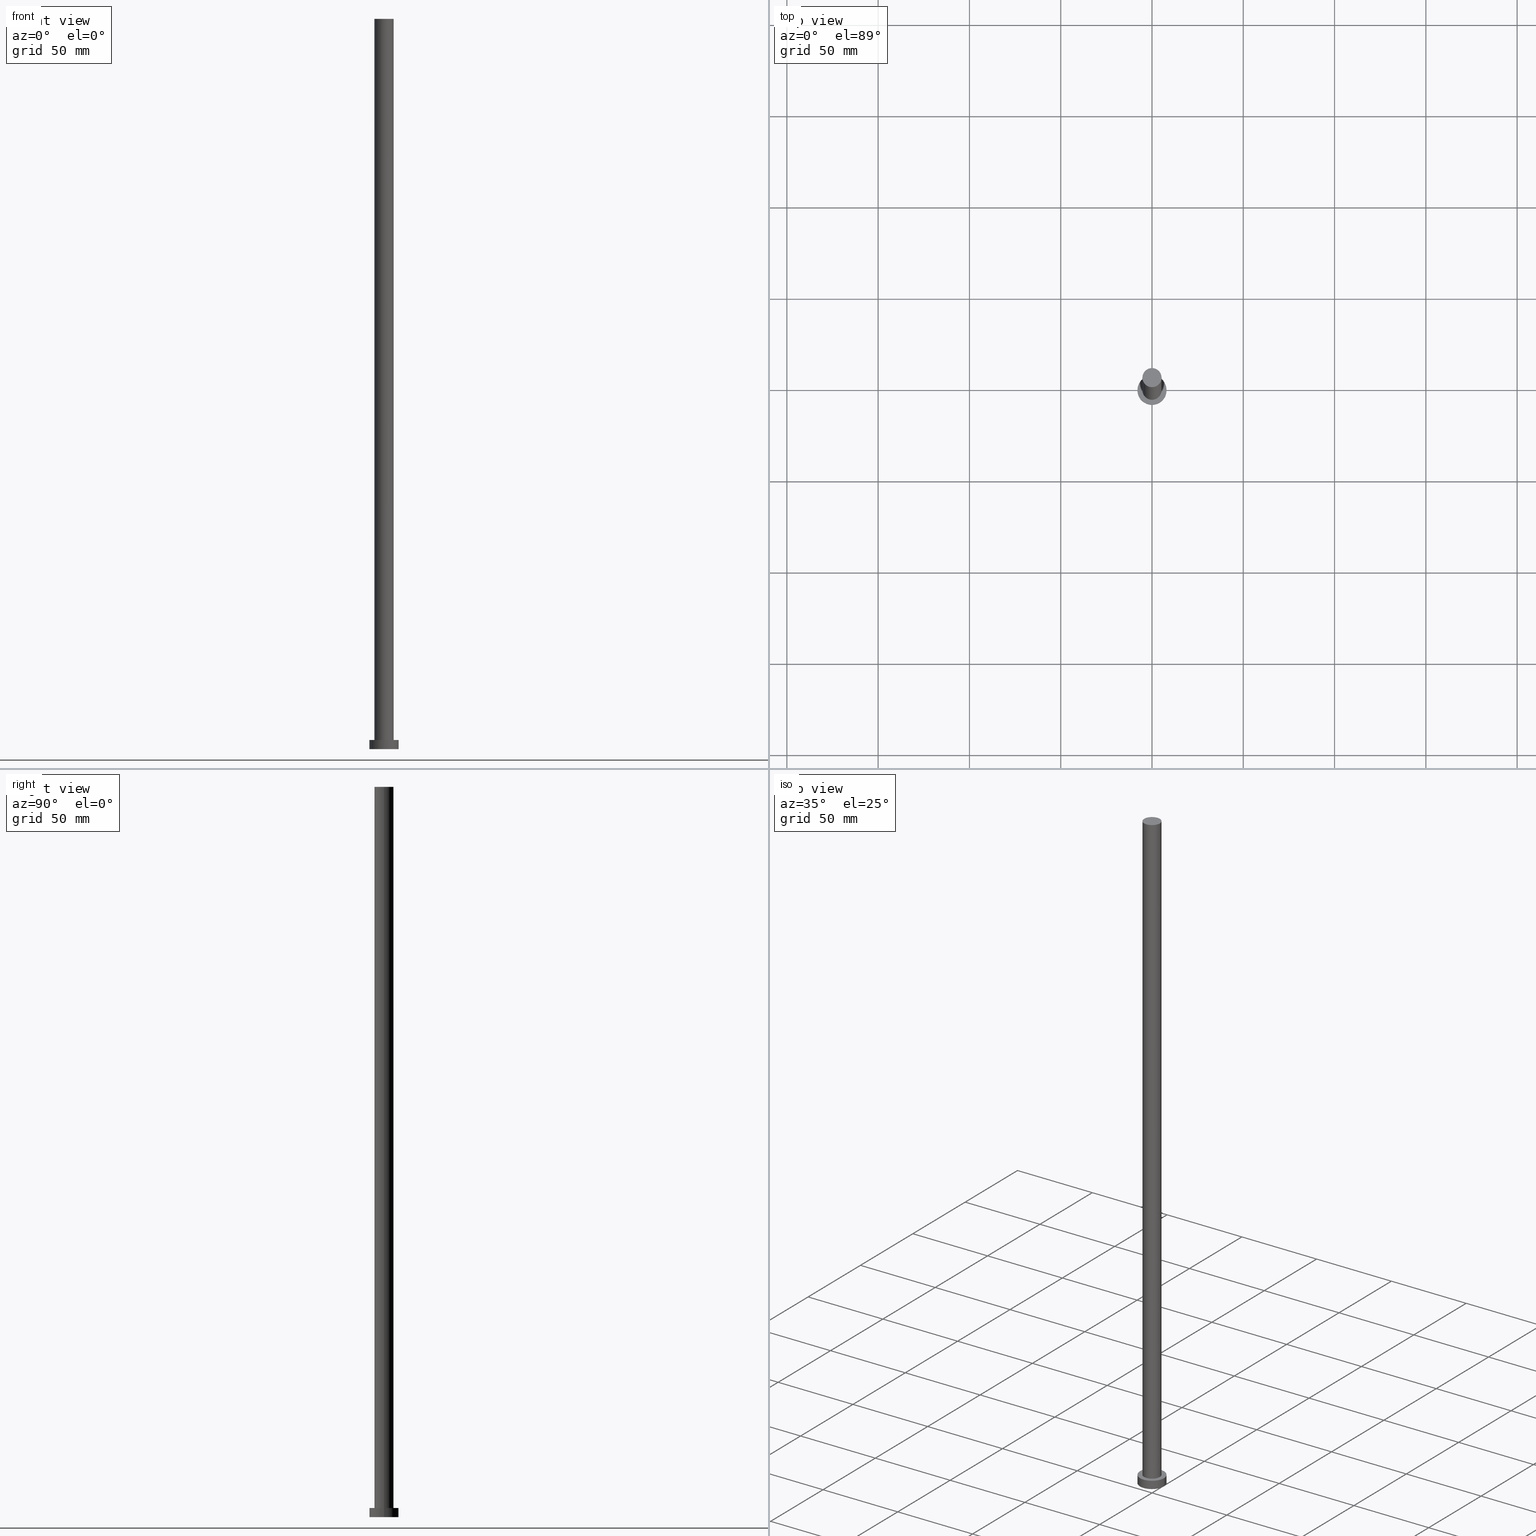
[diagram: canonical four-view strip — front | top / right | iso, engineering-drawing reading convention]
A machine part, canonical four-view strip (front | top / right | iso — engineering-drawing reading convention). The complete STEP part file that produces these views, byte-faithful:
ISO-10303-21;
HEADER;
FILE_DESCRIPTION (( 'STEP AP203' ),
    '1' );
FILE_NAME ('721b.STEP',
    '2023-02-12T11:16:03',
    ( '' ),
    ( '' ),
    'SwSTEP 2.0',
    'SolidWorks 2019',
    '' );
FILE_SCHEMA (( 'CONFIG_CONTROL_DESIGN' ));
ENDSEC;

DATA;
#1 = CARTESIAN_POINT ( 'NONE',  ( 0.000000000000000000, 0.000000000000000000, 400.0000000000000000 ) ) ;
#2 = CARTESIAN_POINT ( 'NONE',  ( -8.000000000000000000, 0.000000000000000000, 5.000000000000000000 ) ) ;
#3 = DIRECTION ( 'NONE',  ( 1.000000000000000000, 0.000000000000000000, 0.000000000000000000 ) ) ;
#4 = PRODUCT ( '721b', '721b', '', ( #84 ) ) ;
#5 = CC_DESIGN_DATE_AND_TIME_ASSIGNMENT ( #159, #115, ( #255 ) ) ;
#6 = ORIENTED_EDGE ( 'NONE', *, *, #206, .F. ) ;
#7 = DIRECTION ( 'NONE',  ( -0.000000000000000000, -0.000000000000000000, -1.000000000000000000 ) ) ;
#8 = VECTOR ( 'NONE', #73, 1000.000000000000000 ) ;
#9 = VERTEX_POINT ( 'NONE', #219 ) ;
#10 = PERSON_AND_ORGANIZATION ( #14, #74 ) ;
#11 = APPROVAL_PERSON_ORGANIZATION ( #170, #143, #69 ) ;
#12 = EDGE_CURVE ( 'NONE', #128, #154, #139, .T. ) ;
#13 = APPROVAL_DATE_TIME ( #192, #143 ) ;
#14 = PERSON ( 'NEUR�EN�', 'NEUR�EN�', 'NEUR�EN�', ('NEUR�EN�'), ('NEUR�EN�'), ('NEUR�EN�') ) ;
#15 = AXIS2_PLACEMENT_3D ( 'NONE', #116, #136, #197 ) ;
#16 = CARTESIAN_POINT ( 'NONE',  ( 0.000000000000000000, 0.000000000000000000, 400.0000000000000000 ) ) ;
#17 = EDGE_CURVE ( 'NONE', #9, #169, #254, .T. ) ;
#18 = DIRECTION ( 'NONE',  ( -0.000000000000000000, -0.000000000000000000, -1.000000000000000000 ) ) ;
#19 = APPLICATION_PROTOCOL_DEFINITION ( 'international standard', 'config_control_design', 1994, #60 ) ;
#20 = DIRECTION ( 'NONE',  ( -1.000000000000000000, 0.000000000000000000, 0.000000000000000000 ) ) ;
#21 = AXIS2_PLACEMENT_3D ( 'NONE', #187, #106, #245 ) ;
#22 = DIRECTION ( 'NONE',  ( 0.000000000000000000, 0.000000000000000000, 1.000000000000000000 ) ) ;
#23 = DATE_AND_TIME ( #242, #207 ) ;
#24 = AXIS2_PLACEMENT_3D ( 'NONE', #16, #96, #217 ) ;
#25 = DIRECTION ( 'NONE',  ( 1.000000000000000000, 0.000000000000000000, 0.000000000000000000 ) ) ;
#26 = APPROVAL_STATUS ( 'not_yet_approved' ) ;
#27 = AXIS2_PLACEMENT_3D ( 'NONE', #167, #227, #121 ) ;
#28 = ORIENTED_EDGE ( 'NONE', *, *, #184, .T. ) ;
#29 = CC_DESIGN_PERSON_AND_ORGANIZATION_ASSIGNMENT ( #46, #202, ( #189 ) ) ;
#30 = CALENDAR_DATE ( 2023, 12, 2 ) ;
#31 = ORIENTED_EDGE ( 'NONE', *, *, #61, .T. ) ;
#32 =( NAMED_UNIT ( * ) SI_UNIT ( $, .STERADIAN. ) SOLID_ANGLE_UNIT ( ) );
#33 = ORIENTED_EDGE ( 'NONE', *, *, #206, .T. ) ;
#34 = EDGE_CURVE ( 'NONE', #169, #107, #135, .T. ) ;
#35 = VERTEX_POINT ( 'NONE', #252 ) ;
#36 = DATE_AND_TIME ( #113, #178 ) ;
#37 = ORIENTED_EDGE ( 'NONE', *, *, #211, .T. ) ;
#38 = CARTESIAN_POINT ( 'NONE',  ( 5.250000000000000888, 6.429395695523604153E-16, 400.0000000000000000 ) ) ;
#39 = CARTESIAN_POINT ( 'NONE',  ( 5.250000000000000888, 6.429395695523604153E-16, 400.0000000000000000 ) ) ;
#40 = PLANE ( 'NONE',  #103 ) ;
#41 = APPROVAL_ROLE ( '' ) ;
#42 = CARTESIAN_POINT ( 'NONE',  ( 5.250000000000000888, 6.429395695523604153E-16, 5.000000000000000000 ) ) ;
#43 = FACE_OUTER_BOUND ( 'NONE', #161, .T. ) ;
#44 = APPROVAL_STATUS ( 'not_yet_approved' ) ;
#45 = DESIGN_CONTEXT ( 'detailed design', #214, 'design' ) ;
#46 = PERSON_AND_ORGANIZATION ( #14, #74 ) ;
#47 = ORIENTED_EDGE ( 'NONE', *, *, #166, .F. ) ;
#48 = ORIENTED_EDGE ( 'NONE', *, *, #119, .T. ) ;
#49 = LINE ( 'NONE', #64, #68 ) ;
#50 =( LENGTH_UNIT ( ) NAMED_UNIT ( * ) SI_UNIT ( .MILLI., .METRE. ) );
#51 = PERSON_AND_ORGANIZATION_ROLE ( 'creator' ) ;
#52 = CIRCLE ( 'NONE', #229, 8.000000000000000000 ) ;
#53 = CC_DESIGN_APPROVAL ( #72, ( #189 ) ) ;
#54 = ADVANCED_FACE ( 'NONE', ( #199 ), #117, .T. ) ;
#55 = CARTESIAN_POINT ( 'NONE',  ( -5.250000000000000888, 0.000000000000000000, 5.000000000000000000 ) ) ;
#56 = CARTESIAN_POINT ( 'NONE',  ( -5.250000000000000888, 0.000000000000000000, 400.0000000000000000 ) ) ;
#57 = DATE_AND_TIME ( #30, #114 ) ;
#58 = LOCAL_TIME ( 12, 16, 3.000000000000000000, #155 ) ;
#59 = CARTESIAN_POINT ( 'NONE',  ( 0.000000000000000000, 0.000000000000000000, 400.0000000000000000 ) ) ;
#60 = APPLICATION_CONTEXT ( 'configuration controlled 3d designs of mechanical parts and assemblies' ) ;
#61 = EDGE_CURVE ( 'NONE', #107, #35, #52, .T. ) ;
#62 = CARTESIAN_POINT ( 'NONE',  ( 0.000000000000000000, 0.000000000000000000, 5.000000000000000000 ) ) ;
#63 = CARTESIAN_POINT ( 'NONE',  ( 0.000000000000000000, 0.000000000000000000, 5.000000000000000000 ) ) ;
#64 = CARTESIAN_POINT ( 'NONE',  ( 8.000000000000000000, 9.797174393178825657E-16, 5.000000000000000000 ) ) ;
#65 = CC_DESIGN_DATE_AND_TIME_ASSIGNMENT ( #23, #83, ( #189 ) ) ;
#66 = EDGE_LOOP ( 'NONE', ( #210, #47 ) ) ;
#67 = EDGE_LOOP ( 'NONE', ( #94, #86, #171, #253 ) ) ;
#68 = VECTOR ( 'NONE', #191, 1000.000000000000000 ) ;
#69 = APPROVAL_ROLE ( '' ) ;
#70 = AXIS2_PLACEMENT_3D ( 'NONE', #63, #185, #224 ) ;
#71 = ORIENTED_EDGE ( 'NONE', *, *, #34, .T. ) ;
#72 = APPROVAL ( #44, 'NEUR�EN�' ) ;
#73 = DIRECTION ( 'NONE',  ( -0.000000000000000000, -0.000000000000000000, -1.000000000000000000 ) ) ;
#74 = ORGANIZATION ( 'NEUR�EN�', 'NEUR�EN�', '' ) ;
#75 = EDGE_CURVE ( 'NONE', #112, #246, #195, .T. ) ;
#76 = AXIS2_PLACEMENT_3D ( 'NONE', #1, #201, #3 ) ;
#77 = ORIENTED_EDGE ( 'NONE', *, *, #75, .T. ) ;
#78 = AXIS2_PLACEMENT_3D ( 'NONE', #148, #22, #180 ) ;
#79 = DIRECTION ( 'NONE',  ( 0.000000000000000000, 0.000000000000000000, 1.000000000000000000 ) ) ;
#80 = FACE_OUTER_BOUND ( 'NONE', #133, .T. ) ;
#81 = APPLICATION_PROTOCOL_DEFINITION ( 'international standard', 'config_control_design', 1994, #214 ) ;
#82 = CYLINDRICAL_SURFACE ( 'NONE', #249, 8.000000000000000000 ) ;
#83 = DATE_TIME_ROLE ( 'creation_date' ) ;
#84 = MECHANICAL_CONTEXT ( 'NONE', #60, 'mechanical' ) ;
#85 = ORIENTED_EDGE ( 'NONE', *, *, #61, .F. ) ;
#86 = ORIENTED_EDGE ( 'NONE', *, *, #12, .T. ) ;
#87 = PERSON_AND_ORGANIZATION ( #14, #74 ) ;
#88 = COORDINATED_UNIVERSAL_TIME_OFFSET ( 1, 0, .AHEAD. ) ;
#89 = ORIENTED_EDGE ( 'NONE', *, *, #184, .F. ) ;
#90 = ADVANCED_FACE ( 'NONE', ( #158 ), #232, .T. ) ;
#91 = APPROVAL_PERSON_ORGANIZATION ( #124, #237, #183 ) ;
#92 = PERSON_AND_ORGANIZATION_ROLE ( 'classification_officer' ) ;
#93 = DIRECTION ( 'NONE',  ( 1.000000000000000000, 0.000000000000000000, 0.000000000000000000 ) ) ;
#94 = ORIENTED_EDGE ( 'NONE', *, *, #119, .F. ) ;
#95 = EDGE_CURVE ( 'NONE', #9, #35, #49, .T. ) ;
#96 = DIRECTION ( 'NONE',  ( -0.000000000000000000, -0.000000000000000000, -1.000000000000000000 ) ) ;
#97 = ADVANCED_FACE ( 'NONE', ( #160 ), #163, .T. ) ;
#98 = PRODUCT_DEFINITION_FORMATION_WITH_SPECIFIED_SOURCE ( 'LIBOVOLN�', '', #4, .NOT_KNOWN. ) ;
#99 = DIRECTION ( 'NONE',  ( 1.000000000000000000, 0.000000000000000000, -0.000000000000000000 ) ) ;
#100 = PERSON_AND_ORGANIZATION ( #14, #74 ) ;
#101 = CARTESIAN_POINT ( 'NONE',  ( 0.000000000000000000, 0.000000000000000000, 5.000000000000000000 ) ) ;
#102 = DIRECTION ( 'NONE',  ( -1.000000000000000000, 0.000000000000000000, 0.000000000000000000 ) ) ;
#103 = AXIS2_PLACEMENT_3D ( 'NONE', #168, #238, #244 ) ;
#104 = CC_DESIGN_APPROVAL ( #143, ( #255 ) ) ;
#105 = PLANE ( 'NONE',  #225 ) ;
#106 = DIRECTION ( 'NONE',  ( 0.000000000000000000, 0.000000000000000000, 1.000000000000000000 ) ) ;
#107 = VERTEX_POINT ( 'NONE', #239 ) ;
#108 = APPROVAL_DATE_TIME ( #57, #72 ) ;
#109 = ORIENTED_EDGE ( 'NONE', *, *, #95, .F. ) ;
#110 = SECURITY_CLASSIFICATION_LEVEL ( 'unclassified' ) ;
#111 = EDGE_LOOP ( 'NONE', ( #109, #89, #71, #31 ) ) ;
#112 = VERTEX_POINT ( 'NONE', #56 ) ;
#113 = CALENDAR_DATE ( 2023, 12, 2 ) ;
#114 = LOCAL_TIME ( 12, 16, 3.000000000000000000, #209 ) ;
#115 = DATE_TIME_ROLE ( 'classification_date' ) ;
#116 = CARTESIAN_POINT ( 'NONE',  ( 0.000000000000000000, 0.000000000000000000, 5.000000000000000000 ) ) ;
#117 = CYLINDRICAL_SURFACE ( 'NONE', #24, 5.250000000000000888 ) ;
#118 = ORIENTED_EDGE ( 'NONE', *, *, #17, .F. ) ;
#119 = EDGE_CURVE ( 'NONE', #128, #112, #193, .T. ) ;
#120 = CARTESIAN_POINT ( 'NONE',  ( 0.000000000000000000, 0.000000000000000000, 5.000000000000000000 ) ) ;
#121 = DIRECTION ( 'NONE',  ( 1.000000000000000000, 0.000000000000000000, 0.000000000000000000 ) ) ;
#122 = PERSON_AND_ORGANIZATION_ROLE ( 'design_owner' ) ;
#123 = PRODUCT_DEFINITION_SHAPE ( 'NONE', 'NONE',  #189 ) ;
#124 = PERSON_AND_ORGANIZATION ( #14, #74 ) ;
#125 = CLOSED_SHELL ( 'NONE', ( #97, #251, #90, #216, #141, #54, #231 ) ) ;
#126 = FACE_OUTER_BOUND ( 'NONE', #130, .T. ) ;
#127 = FACE_OUTER_BOUND ( 'NONE', #213, .T. ) ;
#128 = VERTEX_POINT ( 'NONE', #39 ) ;
#129 = CALENDAR_DATE ( 2023, 12, 2 ) ;
#130 = EDGE_LOOP ( 'NONE', ( #28, #152 ) ) ;
#131 = APPROVAL_STATUS ( 'not_yet_approved' ) ;
#132 = CIRCLE ( 'NONE', #182, 5.250000000000000888 ) ;
#133 = EDGE_LOOP ( 'NONE', ( #85, #6 ) ) ;
#134 = CC_DESIGN_SECURITY_CLASSIFICATION ( #255, ( #98 ) ) ;
#135 = LINE ( 'NONE', #175, #173 ) ;
#136 = DIRECTION ( 'NONE',  ( 0.000000000000000000, 0.000000000000000000, 1.000000000000000000 ) ) ;
#137 = CC_DESIGN_PERSON_AND_ORGANIZATION_ASSIGNMENT ( #10, #153, ( #98 ) ) ;
#138 = VECTOR ( 'NONE', #218, 1000.000000000000000 ) ;
#139 = LINE ( 'NONE', #38, #138 ) ;
#140 =( GEOMETRIC_REPRESENTATION_CONTEXT ( 3 ) GLOBAL_UNCERTAINTY_ASSIGNED_CONTEXT ( ( #221 ) ) GLOBAL_UNIT_ASSIGNED_CONTEXT ( ( #50, #220, #32 ) ) REPRESENTATION_CONTEXT ( 'NONE', 'WORKASPACE' ) );
#141 = ADVANCED_FACE ( 'NONE', ( #80 ), #105, .F. ) ;
#142 = CARTESIAN_POINT ( 'NONE',  ( 0.000000000000000000, 0.000000000000000000, 5.000000000000000000 ) ) ;
#143 = APPROVAL ( #131, 'NEUR�EN�' ) ;
#144 = FACE_BOUND ( 'NONE', #66, .T. ) ;
#145 = DIRECTION ( 'NONE',  ( -1.000000000000000000, 0.000000000000000000, 0.000000000000000000 ) ) ;
#146 = DIRECTION ( 'NONE',  ( 0.000000000000000000, 0.000000000000000000, 1.000000000000000000 ) ) ;
#147 = AXIS2_PLACEMENT_3D ( 'NONE', #120, #226, #243 ) ;
#148 = CARTESIAN_POINT ( 'NONE',  ( 0.000000000000000000, 0.000000000000000000, 0.000000000000000000 ) ) ;
#149 = PERSON_AND_ORGANIZATION ( #14, #74 ) ;
#150 = LOCAL_TIME ( 12, 16, 3.000000000000000000, #248 ) ;
#151 = EDGE_CURVE ( 'NONE', #246, #154, #181, .T. ) ;
#152 = ORIENTED_EDGE ( 'NONE', *, *, #17, .T. ) ;
#153 = PERSON_AND_ORGANIZATION_ROLE ( 'design_supplier' ) ;
#154 = VERTEX_POINT ( 'NONE', #42 ) ;
#155 = COORDINATED_UNIVERSAL_TIME_OFFSET ( 1, 0, .AHEAD. ) ;
#156 = CIRCLE ( 'NONE', #78, 8.000000000000000000 ) ;
#157 = ORIENTED_EDGE ( 'NONE', *, *, #12, .F. ) ;
#158 = FACE_OUTER_BOUND ( 'NONE', #111, .T. ) ;
#159 = DATE_AND_TIME ( #215, #150 ) ;
#160 = FACE_OUTER_BOUND ( 'NONE', #67, .T. ) ;
#161 = EDGE_LOOP ( 'NONE', ( #37, #48 ) ) ;
#162 = AXIS2_PLACEMENT_3D ( 'NONE', #235, #18, #102 ) ;
#163 = CYLINDRICAL_SURFACE ( 'NONE', #162, 5.250000000000000888 ) ;
#164 = CIRCLE ( 'NONE', #27, 5.250000000000000888 ) ;
#165 = CARTESIAN_POINT ( 'NONE',  ( 0.000000000000000000, 0.000000000000000000, 0.000000000000000000 ) ) ;
#166 = EDGE_CURVE ( 'NONE', #154, #246, #164, .T. ) ;
#167 = CARTESIAN_POINT ( 'NONE',  ( 0.000000000000000000, 0.000000000000000000, 5.000000000000000000 ) ) ;
#168 = CARTESIAN_POINT ( 'NONE',  ( 0.000000000000000000, 0.000000000000000000, 400.0000000000000000 ) ) ;
#169 = VERTEX_POINT ( 'NONE', #2 ) ;
#170 = PERSON_AND_ORGANIZATION ( #14, #74 ) ;
#171 = ORIENTED_EDGE ( 'NONE', *, *, #166, .T. ) ;
#172 = APPROVAL_DATE_TIME ( #36, #237 ) ;
#173 = VECTOR ( 'NONE', #177, 1000.000000000000000 ) ;
#174 = CARTESIAN_POINT ( 'NONE',  ( -5.250000000000000888, 0.000000000000000000, 400.0000000000000000 ) ) ;
#175 = CARTESIAN_POINT ( 'NONE',  ( -8.000000000000000000, 0.000000000000000000, 5.000000000000000000 ) ) ;
#176 = AXIS2_PLACEMENT_3D ( 'NONE', #101, #7, #20 ) ;
#177 = DIRECTION ( 'NONE',  ( -0.000000000000000000, -0.000000000000000000, -1.000000000000000000 ) ) ;
#178 = LOCAL_TIME ( 12, 16, 3.000000000000000000, #88 ) ;
#179 = CC_DESIGN_PERSON_AND_ORGANIZATION_ASSIGNMENT ( #87, #51, ( #98 ) ) ;
#180 = DIRECTION ( 'NONE',  ( 1.000000000000000000, 0.000000000000000000, 0.000000000000000000 ) ) ;
#181 = CIRCLE ( 'NONE', #147, 5.250000000000000888 ) ;
#182 = AXIS2_PLACEMENT_3D ( 'NONE', #59, #146, #203 ) ;
#183 = APPROVAL_ROLE ( '' ) ;
#184 = EDGE_CURVE ( 'NONE', #169, #9, #200, .T. ) ;
#185 = DIRECTION ( 'NONE',  ( 0.000000000000000000, 0.000000000000000000, 1.000000000000000000 ) ) ;
#186 = EDGE_LOOP ( 'NONE', ( #157, #190, #77, #188 ) ) ;
#187 = CARTESIAN_POINT ( 'NONE',  ( 0.000000000000000000, 0.000000000000000000, 0.000000000000000000 ) ) ;
#188 = ORIENTED_EDGE ( 'NONE', *, *, #151, .T. ) ;
#189 = PRODUCT_DEFINITION ( 'NEZN�M�', '', #98, #45 ) ;
#190 = ORIENTED_EDGE ( 'NONE', *, *, #211, .F. ) ;
#191 = DIRECTION ( 'NONE',  ( -0.000000000000000000, -0.000000000000000000, -1.000000000000000000 ) ) ;
#192 = DATE_AND_TIME ( #129, #58 ) ;
#193 = CIRCLE ( 'NONE', #76, 5.250000000000000888 ) ;
#194 = CC_DESIGN_APPROVAL ( #237, ( #98 ) ) ;
#195 = LINE ( 'NONE', #174, #8 ) ;
#196 = CC_DESIGN_PERSON_AND_ORGANIZATION_ASSIGNMENT ( #250, #92, ( #255 ) ) ;
#197 = DIRECTION ( 'NONE',  ( 1.000000000000000000, 0.000000000000000000, 0.000000000000000000 ) ) ;
#198 = CARTESIAN_POINT ( 'NONE',  ( 0.000000000000000000, 0.000000000000000000, 0.000000000000000000 ) ) ;
#199 = FACE_OUTER_BOUND ( 'NONE', #186, .T. ) ;
#200 = CIRCLE ( 'NONE', #233, 8.000000000000000000 ) ;
#201 = DIRECTION ( 'NONE',  ( 0.000000000000000000, 0.000000000000000000, 1.000000000000000000 ) ) ;
#202 = PERSON_AND_ORGANIZATION_ROLE ( 'creator' ) ;
#203 = DIRECTION ( 'NONE',  ( 1.000000000000000000, 0.000000000000000000, 0.000000000000000000 ) ) ;
#204 = COORDINATED_UNIVERSAL_TIME_OFFSET ( 1, 0, .AHEAD. ) ;
#205 = DIRECTION ( 'NONE',  ( 0.000000000000000000, 0.000000000000000000, 1.000000000000000000 ) ) ;
#206 = EDGE_CURVE ( 'NONE', #35, #107, #156, .T. ) ;
#207 = LOCAL_TIME ( 12, 16, 3.000000000000000000, #204 ) ;
#208 = PLANE ( 'NONE',  #70 ) ;
#209 = COORDINATED_UNIVERSAL_TIME_OFFSET ( 1, 0, .AHEAD. ) ;
#210 = ORIENTED_EDGE ( 'NONE', *, *, #151, .F. ) ;
#211 = EDGE_CURVE ( 'NONE', #112, #128, #132, .T. ) ;
#212 = ORIENTED_EDGE ( 'NONE', *, *, #34, .F. ) ;
#213 = EDGE_LOOP ( 'NONE', ( #118, #234, #33, #212 ) ) ;
#214 = APPLICATION_CONTEXT ( 'configuration controlled 3d designs of mechanical parts and assemblies' ) ;
#215 = CALENDAR_DATE ( 2023, 12, 2 ) ;
#216 = ADVANCED_FACE ( 'NONE', ( #144, #126 ), #208, .T. ) ;
#217 = DIRECTION ( 'NONE',  ( -1.000000000000000000, 0.000000000000000000, 0.000000000000000000 ) ) ;
#218 = DIRECTION ( 'NONE',  ( -0.000000000000000000, -0.000000000000000000, -1.000000000000000000 ) ) ;
#219 = CARTESIAN_POINT ( 'NONE',  ( 8.000000000000000000, 9.797174393178825657E-16, 5.000000000000000000 ) ) ;
#220 =( NAMED_UNIT ( * ) PLANE_ANGLE_UNIT ( ) SI_UNIT ( $, .RADIAN. ) );
#221 = UNCERTAINTY_MEASURE_WITH_UNIT (LENGTH_MEASURE( 1.000000000000000082E-05 ), #50, 'distance_accuracy_value', 'NONE');
#222 = MANIFOLD_SOLID_BREP ( 'P�idat vysunut�m3', #125 ) ;
#223 = APPROVAL_PERSON_ORGANIZATION ( #149, #72, #41 ) ;
#224 = DIRECTION ( 'NONE',  ( 1.000000000000000000, 0.000000000000000000, -0.000000000000000000 ) ) ;
#225 = AXIS2_PLACEMENT_3D ( 'NONE', #165, #79, #99 ) ;
#226 = DIRECTION ( 'NONE',  ( 0.000000000000000000, 0.000000000000000000, 1.000000000000000000 ) ) ;
#227 = DIRECTION ( 'NONE',  ( 0.000000000000000000, 0.000000000000000000, 1.000000000000000000 ) ) ;
#228 = CC_DESIGN_PERSON_AND_ORGANIZATION_ASSIGNMENT ( #100, #122, ( #4 ) ) ;
#229 = AXIS2_PLACEMENT_3D ( 'NONE', #198, #236, #93 ) ;
#230 = SHAPE_DEFINITION_REPRESENTATION ( #123, #247 ) ;
#231 = ADVANCED_FACE ( 'NONE', ( #43 ), #40, .T. ) ;
#232 = CYLINDRICAL_SURFACE ( 'NONE', #176, 8.000000000000000000 ) ;
#233 = AXIS2_PLACEMENT_3D ( 'NONE', #62, #205, #25 ) ;
#234 = ORIENTED_EDGE ( 'NONE', *, *, #95, .T. ) ;
#235 = CARTESIAN_POINT ( 'NONE',  ( 0.000000000000000000, 0.000000000000000000, 400.0000000000000000 ) ) ;
#236 = DIRECTION ( 'NONE',  ( 0.000000000000000000, 0.000000000000000000, 1.000000000000000000 ) ) ;
#237 = APPROVAL ( #26, 'NEUR�EN�' ) ;
#238 = DIRECTION ( 'NONE',  ( 0.000000000000000000, 0.000000000000000000, 1.000000000000000000 ) ) ;
#239 = CARTESIAN_POINT ( 'NONE',  ( -8.000000000000000000, 0.000000000000000000, 0.000000000000000000 ) ) ;
#240 = PRODUCT_RELATED_PRODUCT_CATEGORY ( 'detail', '', ( #4 ) ) ;
#241 = DIRECTION ( 'NONE',  ( -0.000000000000000000, -0.000000000000000000, -1.000000000000000000 ) ) ;
#242 = CALENDAR_DATE ( 2023, 12, 2 ) ;
#243 = DIRECTION ( 'NONE',  ( 1.000000000000000000, 0.000000000000000000, 0.000000000000000000 ) ) ;
#244 = DIRECTION ( 'NONE',  ( 1.000000000000000000, 0.000000000000000000, -0.000000000000000000 ) ) ;
#245 = DIRECTION ( 'NONE',  ( 1.000000000000000000, 0.000000000000000000, 0.000000000000000000 ) ) ;
#246 = VERTEX_POINT ( 'NONE', #55 ) ;
#247 = ADVANCED_BREP_SHAPE_REPRESENTATION ( '721b', ( #222, #21 ), #140 ) ;
#248 = COORDINATED_UNIVERSAL_TIME_OFFSET ( 1, 0, .AHEAD. ) ;
#249 = AXIS2_PLACEMENT_3D ( 'NONE', #142, #241, #145 ) ;
#250 = PERSON_AND_ORGANIZATION ( #14, #74 ) ;
#251 = ADVANCED_FACE ( 'NONE', ( #127 ), #82, .T. ) ;
#252 = CARTESIAN_POINT ( 'NONE',  ( 8.000000000000000000, 9.797174393178825657E-16, 0.000000000000000000 ) ) ;
#253 = ORIENTED_EDGE ( 'NONE', *, *, #75, .F. ) ;
#254 = CIRCLE ( 'NONE', #15, 8.000000000000000000 ) ;
#255 = SECURITY_CLASSIFICATION ( '', '', #110 ) ;
ENDSEC;
END-ISO-10303-21;
